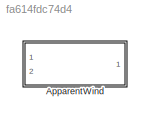
MODEL slx_fa614fdc74d4
KIND library
CONFIG AbsTol = auto
CONFIG EnableMultiTasking = off
CONFIG FixedStep = auto
CONFIG MaxStep = auto
CONFIG MinStep = auto
CONFIG RelTol = 1e-3
CONFIG SampleTimeConstraint = Unconstrained
CONFIG SolverName = VariableStepAuto
CONFIG StartTime = 0.0
CONFIG StopTime = 10.0
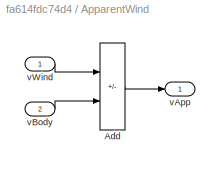
BLOCK [SubSystem] ApparentWind
  Ports = [2, 1]
  RequestExecContextInheritance = off
BLOCK [Sum] ApparentWind/Add
  IconShape = rectangular
  Inputs = +-
  Ports = [2, 1]
BLOCK [Outport] ApparentWind/vApp
  VectorParamsAs1DForOutWhenUnconnected = off
BLOCK [Inport] ApparentWind/vBody
  Port = 2
BLOCK [Inport] ApparentWind/vWind
LINE ApparentWind/Add:1 -> ApparentWind/vApp:1
LINE ApparentWind/vBody:1 -> ApparentWind/Add:2
LINE ApparentWind/vWind:1 -> ApparentWind/Add:1
